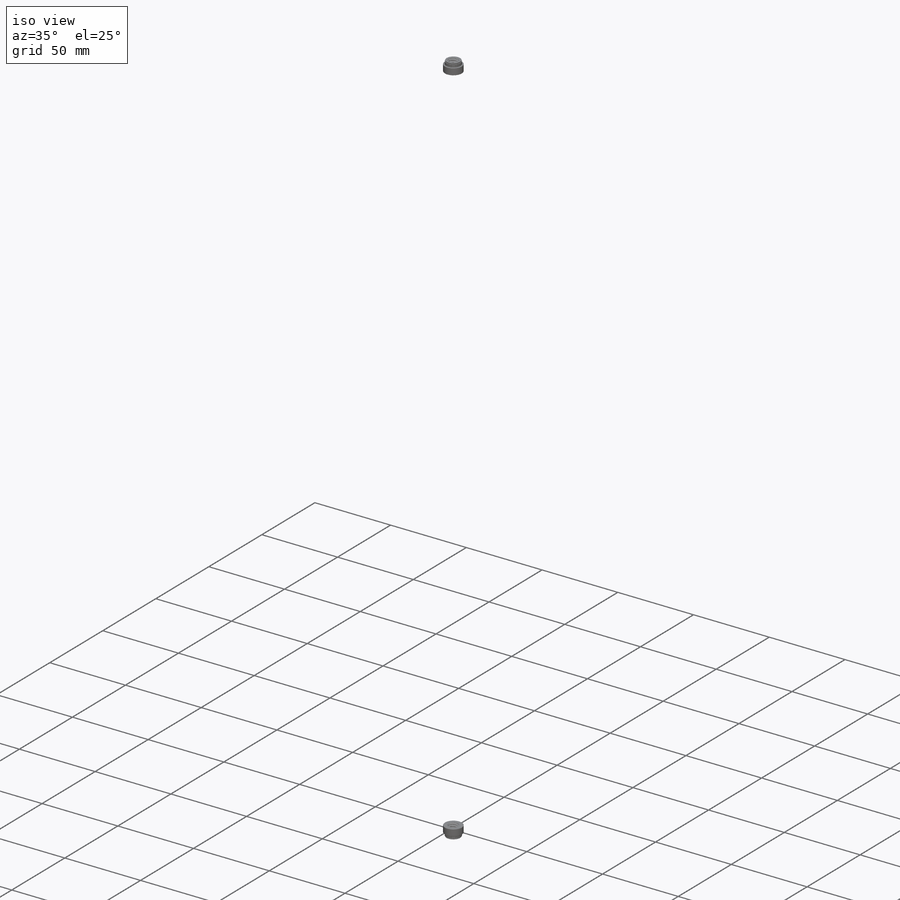
[diagram: iso view]
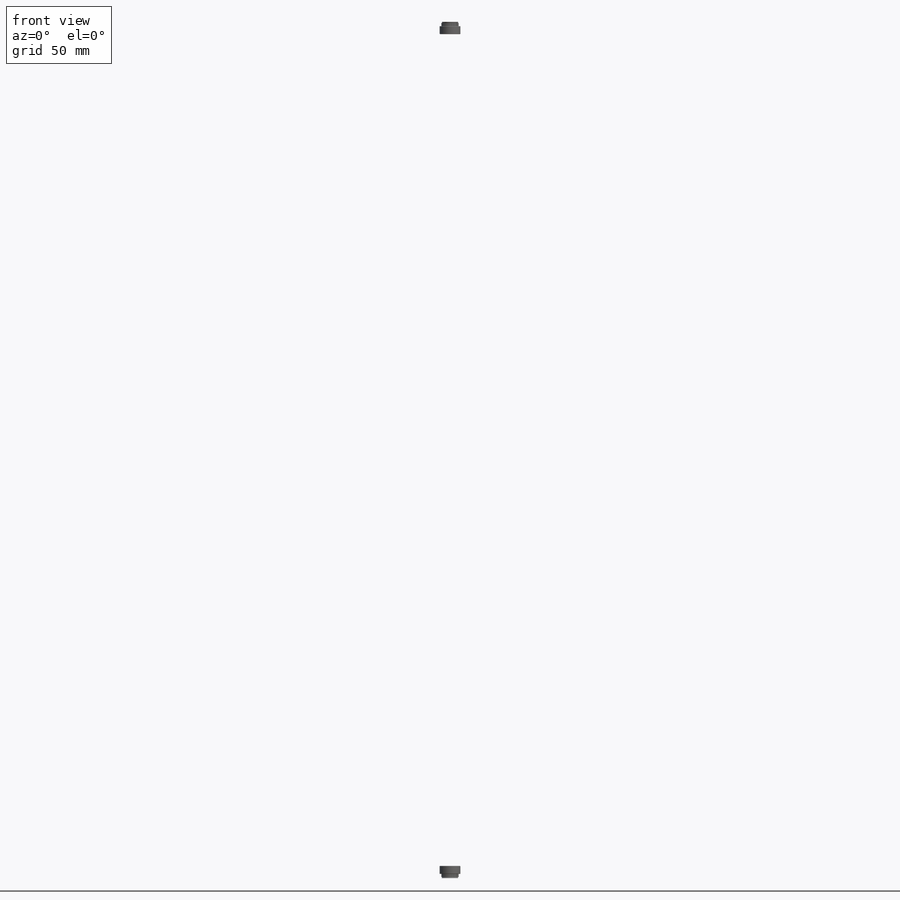
[diagram: front view]
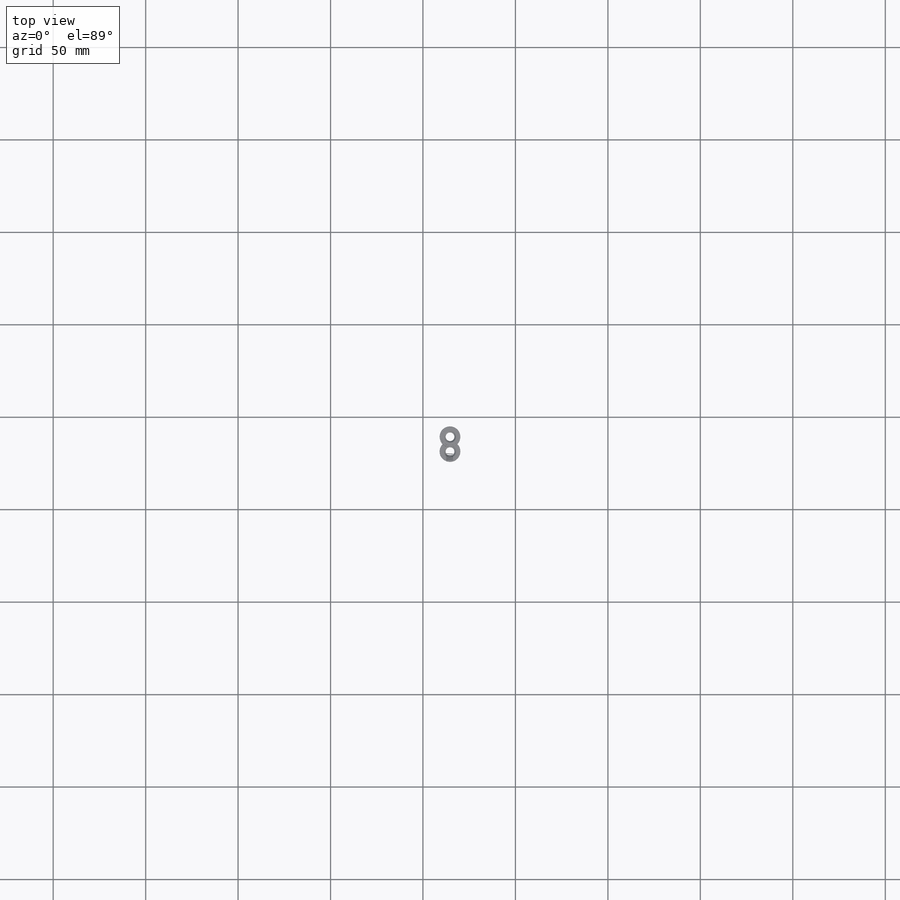
[diagram: top view]
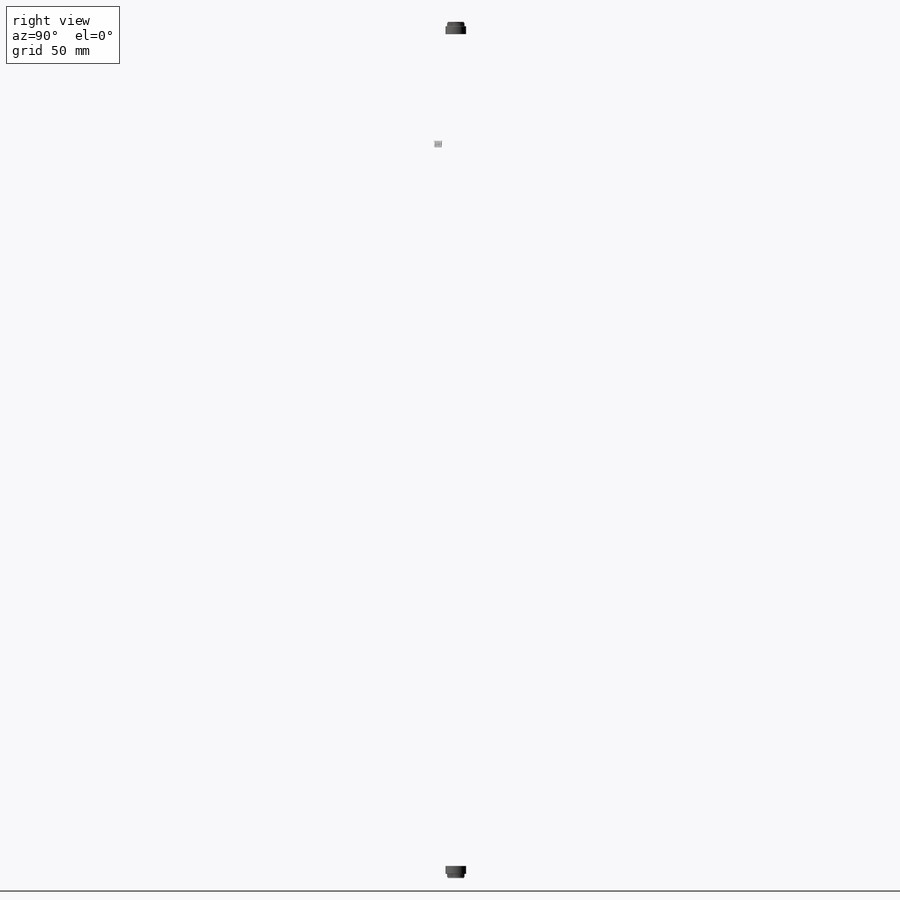
[diagram: right view]
SOLIDWORKS PART (.sldprt)
format: sldprt  version: not decoded by parser v0  size: 2,231,808 bytes
history: native  units: mm
features: sketch x4, cut_extrude x4, move_body x4, fillet x4, material x1, plane x1 + 4 further entries (+32 scaffold rows collapsed; 17 parser-record rows omitted)
feature tree (71):
  scaffold x32  (default folders/planes/origin — collapsed)
  material  "Material <not specified>"
  sketch  "Sketch3"  dims[D1=8.3312mm]
  cut_extrude  "Cut-Extrude3"  [1 undecoded]
  "96439A610"
  parser-record x17  (decoder bookkeeping rows leaked as tree rows — omitted from the tree; the rows remain in map.json)
  move_body  "Body-Move/Copy2"
  plane  "Plane1"
  fillet  "Fillet1"  Radius=6.35mm
  "96439A6101"
  move_body  "Body-Move/Copy4"
  fillet  "Coincident3"  [1 undecoded]
  sketch  "Sketch4"  dims[D1=5.4102mm]
  cut_extrude  "Cut-Extrude4"  Depth=2.54mm
  sketch  "Sketch5"
  cut_extrude  "Cut-Extrude5"  Depth=5.08mm
  "96439A360"
  move_body  "Body-Move/Copy6"
  fillet  "Coincident4"  [1 undecoded]
  "96439A3602"
  move_body  "Body-Move/Copy8"
  fillet  "Coincident5"  [1 undecoded]
  sketch  "Sketch7"  dims[D1=5.334mm D2=212.725mm]
  cut_extrude  "Cut-Extrude6"  Depth=25.4mm
decode coverage: 7 of 16 modeling features carry decoded parameters; 4 rows unclassified (native names shown)
note: 4 parameter values undecoded
summary: no parameter record found for 4 features
note: suppression state not decoded; provenance and decode notes live in map.json
